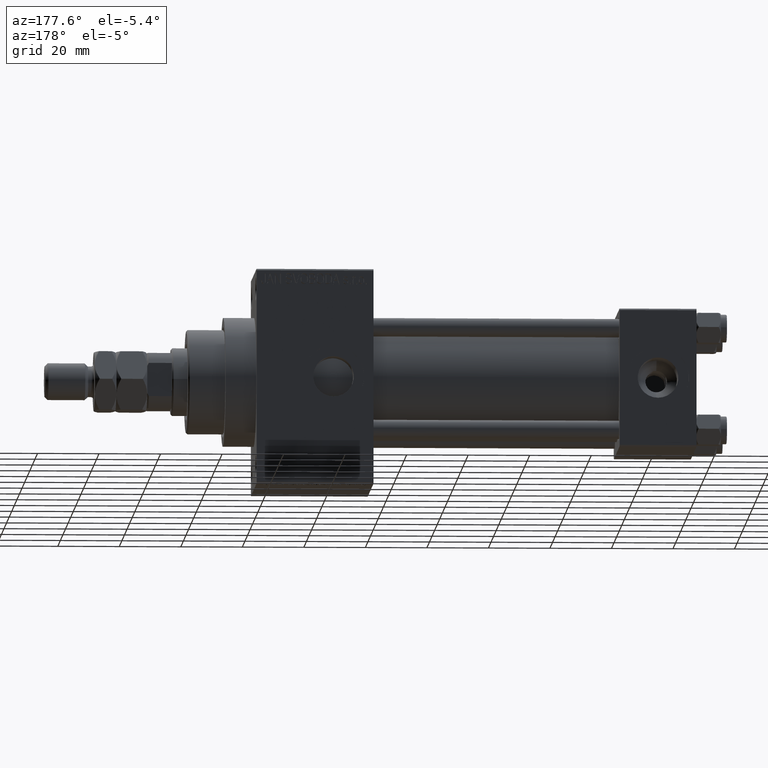
[diagram: clean part render]
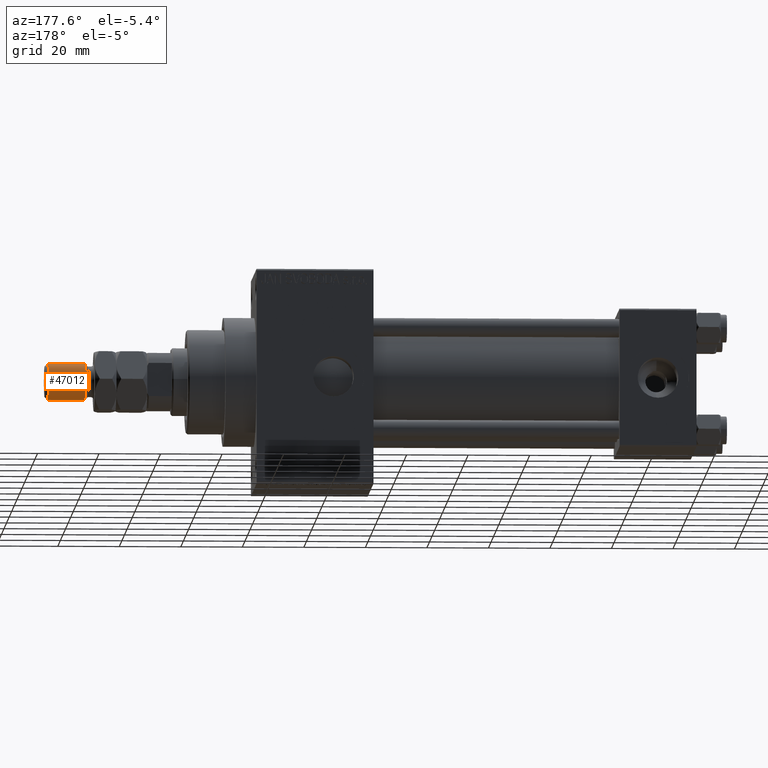
[diagram: same view with one face highlighted and labeled with its STEP entity id]
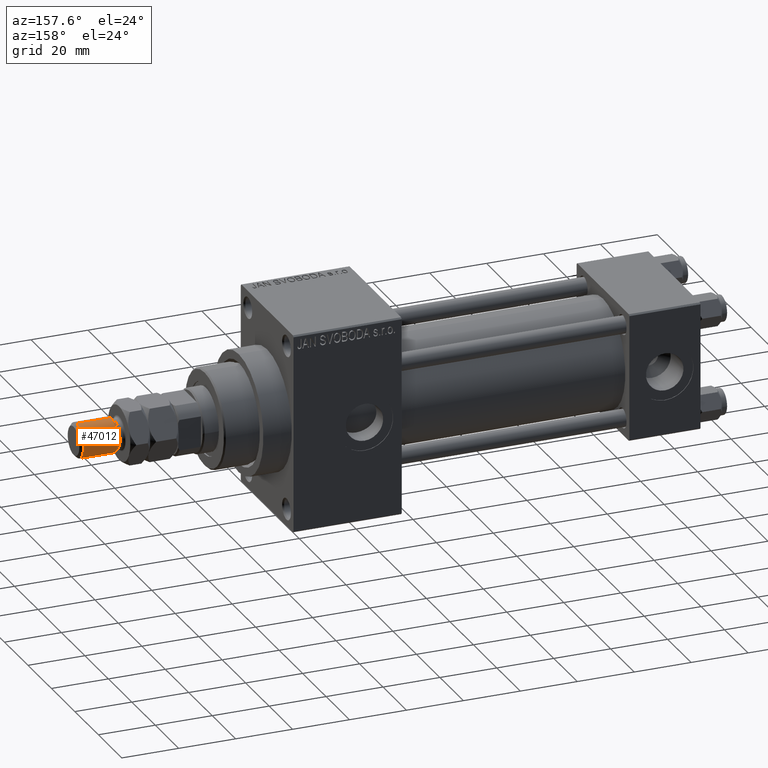
[diagram: same view with one face highlighted and labeled with its STEP entity id]
A machine part, auxiliary view. The second image highlights one B-rep face of the part: STEP entity #47012.
A second angle (auxiliary view) of the same face is appended — the face is thin or edge-on in the first view.
In plain terms, the highlighted cylindrical surface (edge-blend (fillet) strip) has radius 6 mm, axis along (-1, -0, 0).
Its self-contained STEP definition (entity closure, byte-faithful):
#601 = CYLINDRICAL_SURFACE ( 'NONE', #4000, 6.000000000000000888 ) ;
#1828 = AXIS2_PLACEMENT_3D ( 'NONE', #10376, #10879, #6771 ) ;
#4000 = AXIS2_PLACEMENT_3D ( 'NONE', #35729, #47525, #16246 ) ;
#4720 = FACE_OUTER_BOUND ( 'NONE', #15136, .T. ) ;
#6771 = DIRECTION ( 'NONE',  ( 1.000000000000000000, 0.000000000000000000, 0.000000000000000000 ) ) ;
#7027 = CIRCLE ( 'NONE', #41381, 6.000000000000000888 ) ;
#9376 = DIRECTION ( 'NONE',  ( -0.000000000000000000, -0.000000000000000000, -1.000000000000000000 ) ) ;
#10376 = CARTESIAN_POINT ( 'NONE',  ( 0.000000000000000000, 0.000000000000000000, 32.00000000000000000 ) ) ;
#10879 = DIRECTION ( 'NONE',  ( 0.000000000000000000, 0.000000000000000000, -1.000000000000000000 ) ) ;
#12683 = CARTESIAN_POINT ( 'NONE',  ( -6.000000000000000888, 0.000000000000000000, 33.00000000000000000 ) ) ;
#13113 = ORIENTED_EDGE ( 'NONE', *, *, #36782, .T. ) ;
#13670 = EDGE_CURVE ( 'NONE', #40697, #24596, #41941, .T. ) ;
#13821 = ORIENTED_EDGE ( 'NONE', *, *, #13670, .T. ) ;
#15136 = EDGE_LOOP ( 'NONE', ( #13821, #38070, #13113, #47622 ) ) ;
#15329 = DIRECTION ( 'NONE',  ( -0.000000000000000000, -0.000000000000000000, 1.000000000000000000 ) ) ;
#16246 = DIRECTION ( 'NONE',  ( -1.000000000000000000, 0.000000000000000000, 0.000000000000000000 ) ) ;
#17622 = EDGE_CURVE ( 'NONE', #40697, #39640, #44470, .T. ) ;
#19085 = CARTESIAN_POINT ( 'NONE',  ( -6.000000000000000888, 0.000000000000000000, 32.00000000000000000 ) ) ;
#22062 = CARTESIAN_POINT ( 'NONE',  ( 0.000000000000000000, 0.000000000000000000, 20.00000000000000711 ) ) ;
#24596 = VERTEX_POINT ( 'NONE', #26364 ) ;
#26364 = CARTESIAN_POINT ( 'NONE',  ( 6.000000000000000888, 7.347880794884120722E-16, 32.00000000000000000 ) ) ;
#28352 = DIRECTION ( 'NONE',  ( -0.000000000000000000, -0.000000000000000000, -1.000000000000000000 ) ) ;
#33936 = VECTOR ( 'NONE', #28352, 1000.000000000000000 ) ;
#34259 = EDGE_CURVE ( 'NONE', #24596, #36694, #39139, .T. ) ;
#35174 = CARTESIAN_POINT ( 'NONE',  ( 6.000000000000000888, 7.347880794884120722E-16, 20.00000000000000711 ) ) ;
#35534 = CARTESIAN_POINT ( 'NONE',  ( 6.000000000000000888, 7.347880794884120722E-16, 33.00000000000000000 ) ) ;
#35729 = CARTESIAN_POINT ( 'NONE',  ( 0.000000000000000000, 0.000000000000000000, 33.00000000000000000 ) ) ;
#36694 = VERTEX_POINT ( 'NONE', #35174 ) ;
#36782 = EDGE_CURVE ( 'NONE', #36694, #39640, #7027, .T. ) ;
#38070 = ORIENTED_EDGE ( 'NONE', *, *, #34259, .T. ) ;
#38139 = CARTESIAN_POINT ( 'NONE',  ( -6.000000000000000888, 0.000000000000000000, 20.00000000000000711 ) ) ;
#39139 = LINE ( 'NONE', #35534, #33936 ) ;
#39640 = VERTEX_POINT ( 'NONE', #38139 ) ;
#40697 = VERTEX_POINT ( 'NONE', #19085 ) ;
#41381 = AXIS2_PLACEMENT_3D ( 'NONE', #22062, #15329, #47346 ) ;
#41941 = CIRCLE ( 'NONE', #1828, 6.000000000000000888 ) ;
#44470 = LINE ( 'NONE', #12683, #45370 ) ;
#45370 = VECTOR ( 'NONE', #9376, 1000.000000000000000 ) ;
#47012 = ADVANCED_FACE ( 'NONE', ( #4720 ), #601, .T. ) ;
#47346 = DIRECTION ( 'NONE',  ( 1.000000000000000000, 0.000000000000000000, 0.000000000000000000 ) ) ;
#47525 = DIRECTION ( 'NONE',  ( -0.000000000000000000, -0.000000000000000000, -1.000000000000000000 ) ) ;
#47622 = ORIENTED_EDGE ( 'NONE', *, *, #17622, .F. ) ;